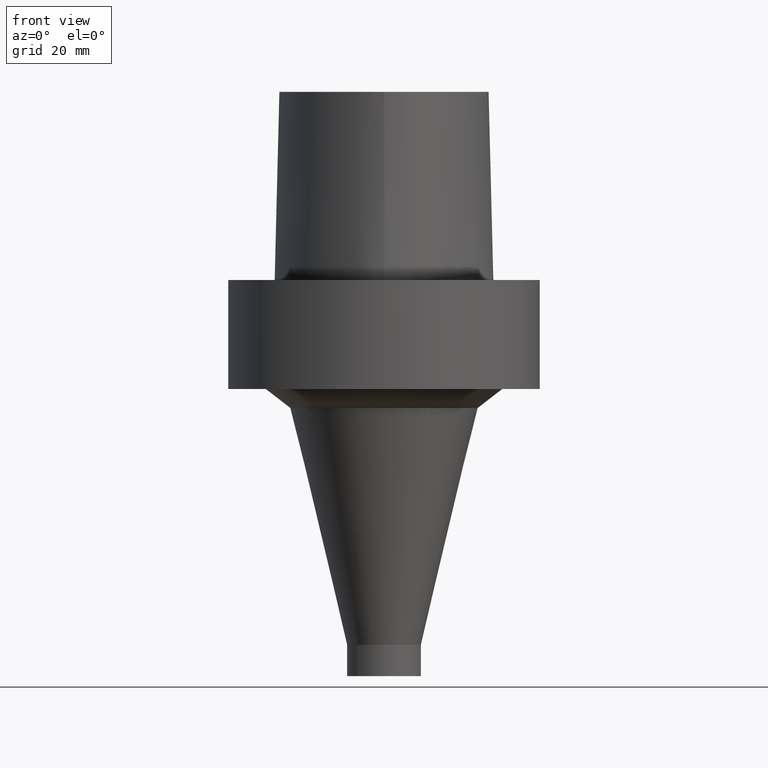
[diagram: clean part render]
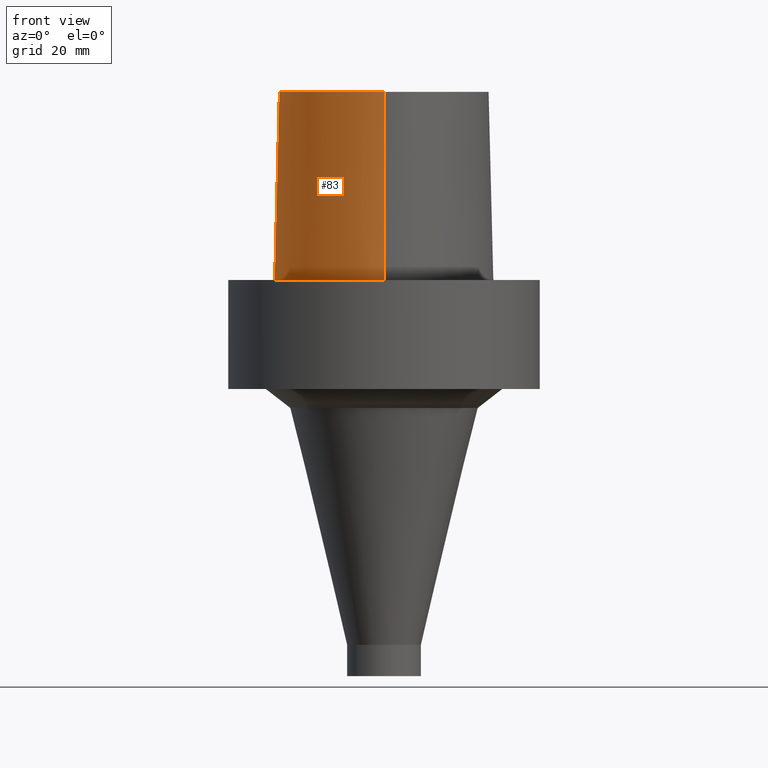
[diagram: same view with one face highlighted and labeled with its STEP entity id]
A machine part, front view. The second image highlights one B-rep face of the part: STEP entity #83.
In plain terms, the highlighted face is a freeform B-spline surface patch.
Its self-contained STEP definition (entity closure, byte-faithful):
#83=ADVANCED_FACE('',(#109),#110,.T.);
#109=FACE_OUTER_BOUND('',#204,.T.);
#110=B_SPLINE_SURFACE_WITH_KNOTS('',3,3,((#205,#206,#207,#208),(#209,#210,#211,#212),(#213,#214,#215,#216),(#217,#218,#219,#220),(#221,#222,#223,#224),(#225,#226,#227,#228),(#229,#230,#231,#232),(#233,#234,#235,#236),(#237,#238,#239,#240),(#241,#242,#243,#244),(#245,#246,#247,#248),(#249,#250,#251,#252),(#253,#254,#255,#256),(#257,#258,#259,#260),(#261,#262,#263,#264),(#265,#266,#267,#268),(#269,#270,#271,#272),(#273,#274,#275,#276)),.UNSPECIFIED.,.F.,.F.,.F.,(4,1,1,1,1,1,1,1,1,2,1,1,1,1,4),(4,4),(-6.6151339308743,-6.20168806019465,-5.78824218951501,-5.37479631883537,-4.96135044815572,-4.13445870679644,-3.30756696543715,-2.89412109475751,-2.48067522407786,-2.06722935339822,-1.65378348271857,-1.24033761203893,-0.826891741359287,-0.413445870679644,0.0),(-3.8,0.0),.UNSPECIFIED.);
#204=EDGE_LOOP('',(#321,#322,#323,#324));
#205=CARTESIAN_POINT('',(0.038736923393866,-22.5191997536361,38.0));
#206=CARTESIAN_POINT('',(0.04035580478973,-22.8358410047159,25.3333333333066));
#207=CARTESIAN_POINT('',(0.041974686185626,-23.1524822558133,12.6666666666934));
#208=CARTESIAN_POINT('',(0.04359356758149,-23.4691235068931,0.0));
#209=CARTESIAN_POINT('',(-1.33786123484754,-22.5261650259856,38.0));
#210=CARTESIAN_POINT('',(-1.38240731367927,-22.8430399310626,25.3333333333066));
#211=CARTESIAN_POINT('',(-1.42695339249092,-23.1599147815484,12.6666666666934));
#212=CARTESIAN_POINT('',(-1.4714994713963,-23.4767895315797,0.0));
#213=CARTESIAN_POINT('',(-4.08909358431842,-21.9268839879558,38.0));
#214=CARTESIAN_POINT('',(-4.20580731135515,-22.2249725500078,25.3333333333066));
#215=CARTESIAN_POINT('',(-4.32252104640446,-22.5230611651922,12.6666666666934));
#216=CARTESIAN_POINT('',(-4.43923476371401,-22.821149804767,0.0));
#217=CARTESIAN_POINT('',(-7.8333083619947,-19.9973514861616,38.0));
#218=CARTESIAN_POINT('',(-8.00568301809614,-20.2649260859405,25.3333333333066));
#219=CARTESIAN_POINT('',(-8.1780576640789,-20.532500564315,12.6666666666934));
#220=CARTESIAN_POINT('',(-8.35043230079961,-20.8000751253325,0.0));
#221=CARTESIAN_POINT('',(-11.1035071147626,-17.450554957873,38.0));
#222=CARTESIAN_POINT('',(-11.3173048160562,-17.6855739222454,25.3333333333066));
#223=CARTESIAN_POINT('',(-11.5311025116181,-17.9205928617968,12.6666666666934));
#224=CARTESIAN_POINT('',(-11.744900222602,-18.1556117874078,0.0));
#225=CARTESIAN_POINT('',(-14.9379535189057,-13.461132049697,38.0));
#226=CARTESIAN_POINT('',(-15.191622410671,-13.6542981711372,25.3333333333066));
#227=CARTESIAN_POINT('',(-15.4452913389853,-13.8474645327131,12.6666666666934));
#228=CARTESIAN_POINT('',(-15.6989602501314,-14.0406306929147,0.0));
#229=CARTESIAN_POINT('',(-18.6681263017223,-7.59391757463204,38.0));
#230=CARTESIAN_POINT('',(-18.9571800800711,-7.73136168081928,25.3333333333066));
#231=CARTESIAN_POINT('',(-19.2462337287194,-7.86880572399774,12.6666666666934));
#232=CARTESIAN_POINT('',(-19.5352875070682,-8.00624990770787,0.0));
#233=CARTESIAN_POINT('',(-20.7857899858339,-0.952862819790525,38.0));
#234=CARTESIAN_POINT('',(-21.0973808305434,-1.02218087467418,25.3333333333066));
#235=CARTESIAN_POINT('',(-21.408971677436,-1.09149899580772,12.6666666666934));
#236=CARTESIAN_POINT('',(-21.7205626190491,-1.16081708945282,0.0));
#237=CARTESIAN_POINT('',(-21.2911760556836,4.5469215763113,38.0));
#238=CARTESIAN_POINT('',(-21.610337904926,4.54783292082248,25.3333333333066));
#239=CARTESIAN_POINT('',(-21.9294998290918,4.54874426225691,12.6666666666934));
#240=CARTESIAN_POINT('',(-22.2486616783342,4.54965558738736,0.0));
#241=CARTESIAN_POINT('',(-20.7345309521958,8.74909381391006,38.0));
#242=CARTESIAN_POINT('',(-21.0445680426217,8.83349432450556,25.3333333333066));
#243=CARTESIAN_POINT('',(-21.3546050933631,8.91789488065068,12.6666666666934));
#244=CARTESIAN_POINT('',(-21.6646421256468,9.00229539124618,0.0));
#245=CARTESIAN_POINT('',(-19.5531512296439,11.3174844040833,38.0));
#246=CARTESIAN_POINT('',(-19.8336219699984,11.4710077674213,25.3333333333066));
#247=CARTESIAN_POINT('',(-20.1140927680763,11.6245311337623,12.6666666666934));
#248=CARTESIAN_POINT('',(-20.3945635471922,11.7780544971003,0.0));
#249=CARTESIAN_POINT('',(-17.9100913688793,13.524027510437,38.0));
#250=CARTESIAN_POINT('',(-18.1375785458768,13.7487051053655,25.3333333333066));
#251=CARTESIAN_POINT('',(-18.365065665211,13.9733826973296,12.6666666666934));
#252=CARTESIAN_POINT('',(-18.5925528034471,14.1980602922581,0.0));
#253=CARTESIAN_POINT('',(-15.7996349656398,15.3762170634413,38.0));
#254=CARTESIAN_POINT('',(-15.9739761051783,15.6434029846179,25.3333333333066));
#255=CARTESIAN_POINT('',(-16.1483172726872,15.9105889315134,12.6666666666934));
#256=CARTESIAN_POINT('',(-16.3226584122258,16.1777748720707,0.0));
#257=CARTESIAN_POINT('',(-12.1175640002064,17.3825162484012,38.0));
#258=CARTESIAN_POINT('',(-12.2475895903055,17.6724842099619,25.3333333333066));
#259=CARTESIAN_POINT('',(-12.3776152070492,17.9624521925696,12.6666666666934));
#260=CARTESIAN_POINT('',(-12.5076407874579,18.2524201541303,0.0));
#261=CARTESIAN_POINT('',(-8.21761151654222,18.7588585989994,38.0));
#262=CARTESIAN_POINT('',(-8.30099497910627,19.0656105427881,25.3333333333066));
#263=CARTESIAN_POINT('',(-8.38437843913309,19.3723624535439,12.6666666666934));
#264=CARTESIAN_POINT('',(-8.46776192107786,19.679114377952,0.0));
#265=CARTESIAN_POINT('',(-4.13466093881225,19.5396850837055,38.0));
#266=CARTESIAN_POINT('',(-4.16658562115465,19.8557172636973,25.3333333333066));
#267=CARTESIAN_POINT('',(-4.19851029939059,20.1717494367229,12.6666666666934));
#268=CARTESIAN_POINT('',(-4.23043497193604,20.487781597334,0.0));
#269=CARTESIAN_POINT('',(-1.37917220403684,19.6638560588908,38.0));
#270=CARTESIAN_POINT('',(-1.39382511685176,19.98016223565,25.3333333333066));
#271=CARTESIAN_POINT('',(-1.40847802945569,20.296468399885,12.6666666666934));
#272=CARTESIAN_POINT('',(-1.42313094248379,20.6127745766442,0.0));
#273=CARTESIAN_POINT('',(-0.001218547003662,19.7276821925089,38.0));
#274=CARTESIAN_POINT('',(-0.015869696232855,20.043988446791,25.3333333333066));
#275=CARTESIAN_POINT('',(-0.030520845462092,20.3602947010464,12.6666666666934));
#276=CARTESIAN_POINT('',(-0.045171994691285,20.6766009553285,0.0));
#321=ORIENTED_EDGE('',*,*,#338,.T.);
#322=ORIENTED_EDGE('',*,*,#347,.F.);
#323=ORIENTED_EDGE('',*,*,#348,.F.);
#324=ORIENTED_EDGE('',*,*,#349,.T.);
#338=EDGE_CURVE('',#355,#352,#356,.T.);
#347=EDGE_CURVE('',#370,#352,#372,.T.);
#348=EDGE_CURVE('',#368,#370,#373,.T.);
#349=EDGE_CURVE('',#368,#355,#374,.T.);
#352=VERTEX_POINT('',#377);
#355=VERTEX_POINT('',#411);
#356=B_SPLINE_CURVE_WITH_KNOTS('',3,(#412,#413,#414,#415,#416,#417,#418,#419,#420,#421,#422,#423,#424,#425,#426,#427,#428,#429,#430,#431,#432,#433,#434,#435,#436,#437,#438,#439,#440,#441),.UNSPECIFIED.,.F.,.F.,(4,2,2,2,2,2,2,2,2,2,2,2,2,2,4),(0.0,0.576808184119594,1.15361636823919,1.43293031700624,1.7122442657733,1.99155821454036,2.27087216330741,2.85949822796588,3.15381126029511,3.44812429262434,4.36563722999232,5.28315016736029,5.8130055067864,6.21406971883035,6.6151339308743),.UNSPECIFIED.);
#368=VERTEX_POINT('',#453);
#370=VERTEX_POINT('',#456);
#372=LINE('',#473,#474);
#373=B_SPLINE_CURVE_WITH_KNOTS('',3,(#475,#476,#477,#478,#479,#480,#481,#482,#483,#484,#485,#486,#487,#488,#489,#490),.UNSPECIFIED.,.F.,.F.,(4,1,1,1,1,1,1,1,1,1,1,1,1,4),(0.0,0.447924670568964,0.9388024242536,1.50591409090711,2.07314340012323,2.72424957442464,3.2253501842849,3.80982102049476,4.34867996267067,4.85900173381144,5.37972031856977,6.03459825488646,6.61113557741484,6.61513393087395),.UNSPECIFIED.);
#374=LINE('',#491,#492);
#377=CARTESIAN_POINT('',(0.04359356758149,-23.4691235068931,0.0));
#411=CARTESIAN_POINT('',(-0.045171994691285,20.6766009553285,0.0));
#412=CARTESIAN_POINT('',(-0.045171994691285,20.6766009553285,0.0));
#413=CARTESIAN_POINT('',(-1.96758797023018,20.5875555983123,0.0));
#414=CARTESIAN_POINT('',(-3.95342611673668,20.4850284912479,-1.421085E-014));
#415=CARTESIAN_POINT('',(-7.86342529995983,19.7967909190733,7.105427E-015));
#416=CARTESIAN_POINT('',(-9.79439573378639,19.2503426360022,-1.421085E-014));
#417=CARTESIAN_POINT('',(-12.5351742003408,18.1332577991903,0.0));
#418=CARTESIAN_POINT('',(-13.4106560097683,17.7191970550452,0.0));
#419=CARTESIAN_POINT('',(-15.1227536857037,16.7802221286297,7.105427E-015));
#420=CARTESIAN_POINT('',(-15.9615364355591,16.2592643918937,0.0));
#421=CARTESIAN_POINT('',(-17.5597683566648,15.0665385774434,0.0));
#422=CARTESIAN_POINT('',(-18.3143568572283,14.3955246024635,-7.105427E-015));
#423=CARTESIAN_POINT('',(-19.638502795217,12.8665014798265,-7.105427E-015));
#424=CARTESIAN_POINT('',(-20.1979602542332,11.999774776593,0.0));
#425=CARTESIAN_POINT('',(-21.5622718142072,9.15853750369237,0.0));
#426=CARTESIAN_POINT('',(-21.9947483544612,7.02185767378744,0.0));
#427=CARTESIAN_POINT('',(-22.1134563193034,3.90325125553384,0.0));
#428=CARTESIAN_POINT('',(-22.0668279345839,2.87928778574124,0.0));
#429=CARTESIAN_POINT('',(-21.8551986681238,0.853042087412899,0.0));
#430=CARTESIAN_POINT('',(-21.6926789478513,-0.149498515836233,-1.421085E-014));
#431=CARTESIAN_POINT('',(-20.816421377794,-4.23736740865811,1.421085E-014));
#432=CARTESIAN_POINT('',(-19.659579746308,-7.20863943907163,-1.421085E-014));
#433=CARTESIAN_POINT('',(-16.574666895304,-12.7137973313948,0.0));
#434=CARTESIAN_POINT('',(-14.6473715787034,-15.2481179483411,-7.105427E-015));
#435=CARTESIAN_POINT('',(-11.050022952355,-18.7018400427945,7.105427E-015));
#436=CARTESIAN_POINT('',(-9.61826302632357,-19.8571497088389,0.0));
#437=CARTESIAN_POINT('',(-6.85491632421896,-21.5712784212,-1.421085E-014));
#438=CARTESIAN_POINT('',(-5.58035985461548,-22.2135461215161,0.0));
#439=CARTESIAN_POINT('',(-2.86743329636734,-23.1704091567902,0.0));
#440=CARTESIAN_POINT('',(-1.42611943322398,-23.4766376606116,0.0));
#441=CARTESIAN_POINT('',(0.04359356758149,-23.4691235068931,0.0));
#453=CARTESIAN_POINT('',(-0.001218547003662,19.7276821925089,38.0));
#456=CARTESIAN_POINT('',(0.038736923393866,-22.5191997536361,38.0));
#473=CARTESIAN_POINT('',(0.038736923393866,-22.5191997536361,38.0));
#474=VECTOR('',#515,38.0118715498723);
#475=CARTESIAN_POINT('',(-0.001218547003662,19.7276821925089,38.0));
#476=CARTESIAN_POINT('',(-1.49408492138443,19.6585333605309,38.0));
#477=CARTESIAN_POINT('',(-4.62297391420352,19.513604770166,38.0));
#478=CARTESIAN_POINT('',(-9.56160616752212,18.4291575730197,38.0));
#479=CARTESIAN_POINT('',(-14.5427684976927,16.2697452580488,38.0));
#480=CARTESIAN_POINT('',(-19.4315563551602,12.5302108980807,38.0));
#481=CARTESIAN_POINT('',(-21.306358833612,6.76352894547076,38.0));
#482=CARTESIAN_POINT('',(-21.0724946936277,0.957075236984038,38.0));
#483=CARTESIAN_POINT('',(-19.7876470880144,-4.34628503581652,38.0));
#484=CARTESIAN_POINT('',(-17.5396999600095,-9.33314444653089,38.0));
#485=CARTESIAN_POINT('',(-14.645447733857,-13.7185760345629,38.0));
#486=CARTESIAN_POINT('',(-10.7996726536643,-17.856257282137,38.0));
#487=CARTESIAN_POINT('',(-6.00479510196376,-21.2687382067675,38.0));
#488=CARTESIAN_POINT('',(-1.90747171908525,-22.5250621415864,38.0));
#489=CARTESIAN_POINT('',(0.025424107066464,-22.5192678176378,38.0));
#490=CARTESIAN_POINT('',(0.038736923394311,-22.519199753636,38.0));
#491=CARTESIAN_POINT('',(-0.001218547003662,19.7276821925089,38.0));
#492=VECTOR('',#516,38.0118715498723);
#515=DIRECTION('',(0.000127766510556,-0.024990186342461,-0.999687688361864));
#516=DIRECTION('',(-0.001156308434589,0.02496374748543,-0.999687688361864));